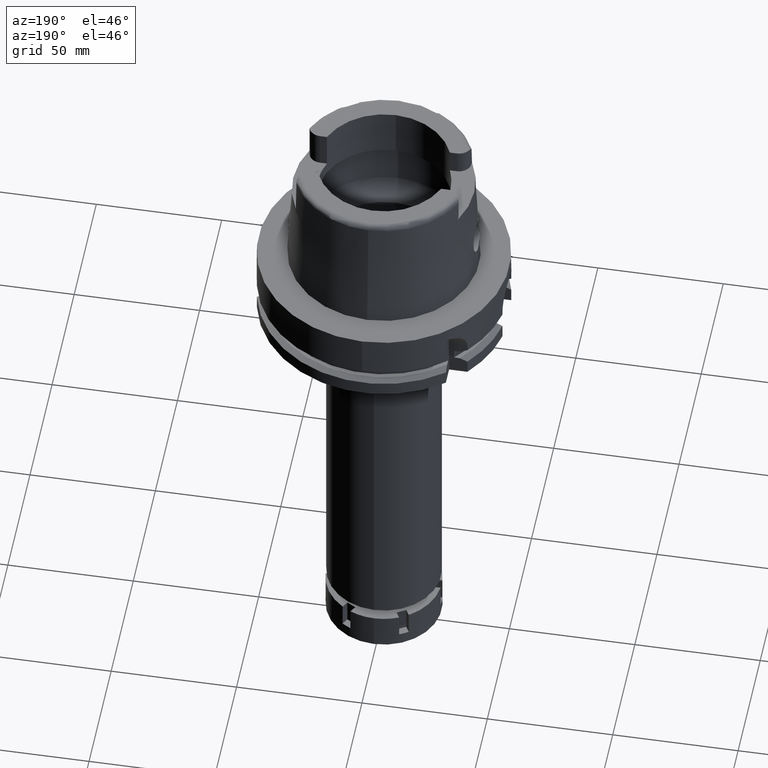
[diagram: clean part render]
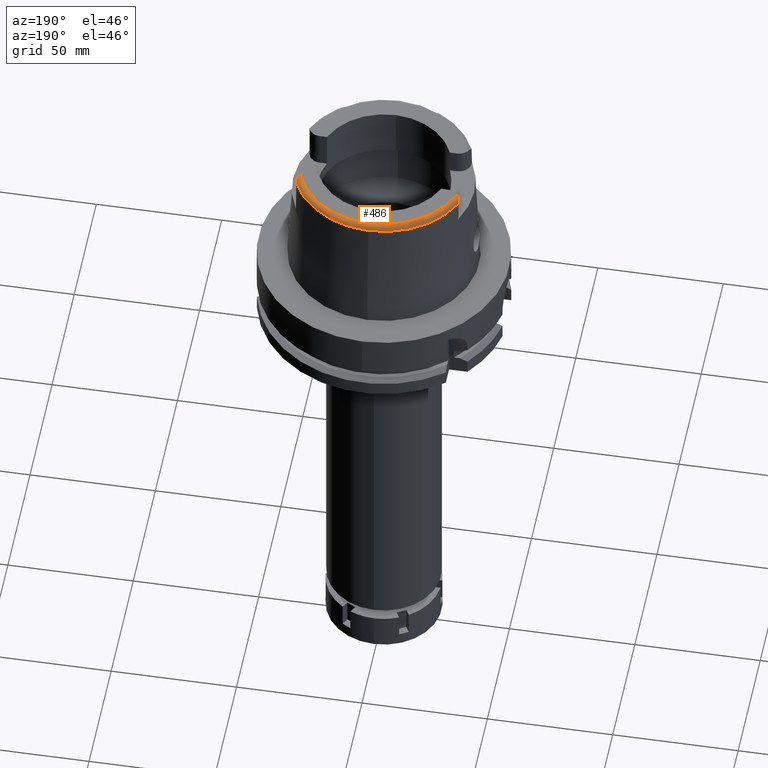
[diagram: same view with one face highlighted and labeled with its STEP entity id]
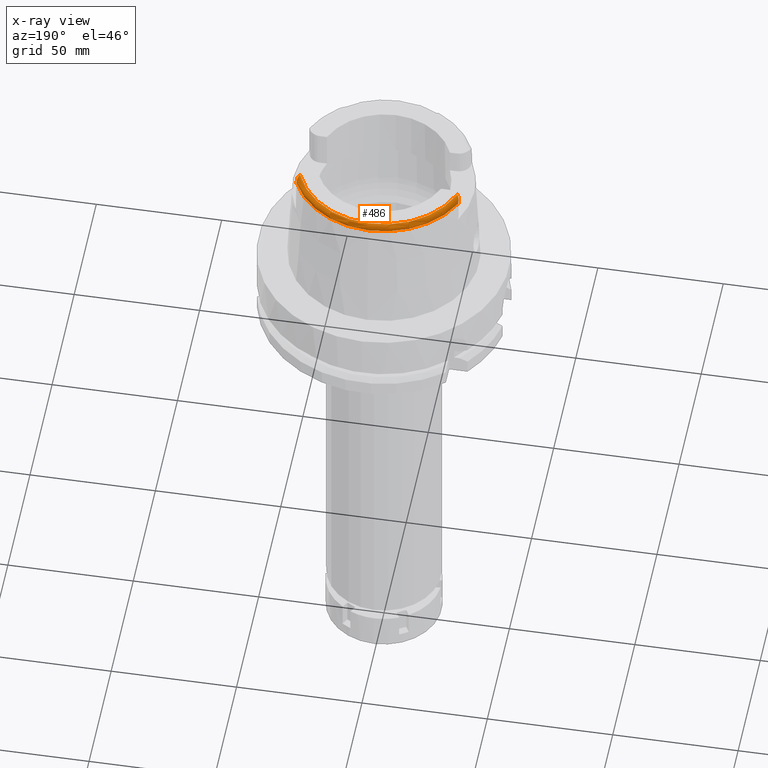
[diagram: x-ray of the same camera — body ghosted, the highlighted face saturated]
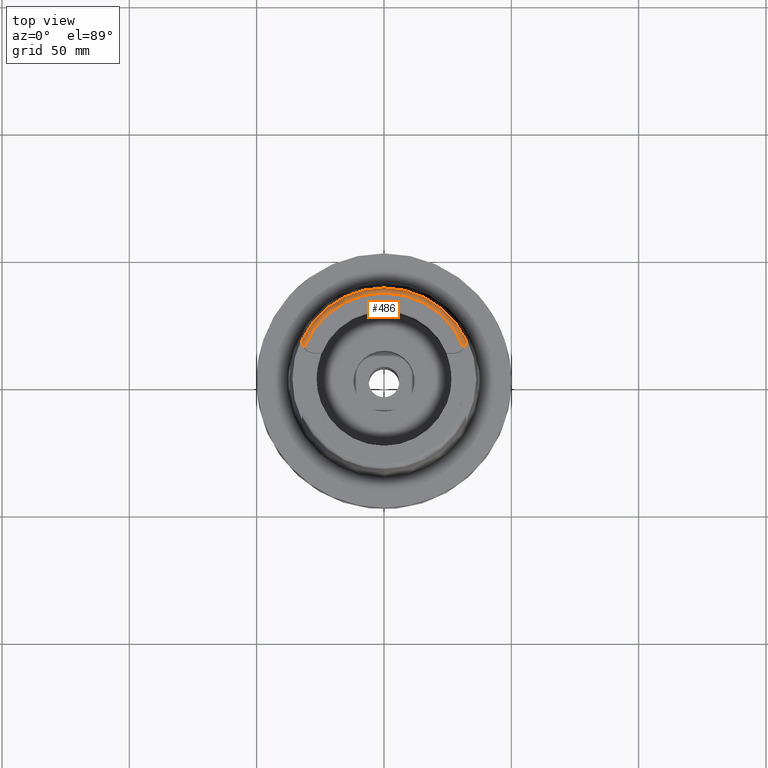
[diagram: same view with one face highlighted and labeled with its STEP entity id]
A machine part, auxiliary view. The second image highlights one B-rep face of the part: STEP entity #486.
The next image is the same camera in x-ray: the body ghosted, the highlighted face saturated — about 0% of this face is hidden behind the body in this view.
A second angle (top view) of the same face is appended — the face is thin or edge-on in the first view.
In plain terms, the highlighted toroidal blend (fillet) surface has major radius 33.5974 mm and minor (blend) radius 2 mm.
Its self-contained STEP definition (entity closure, byte-faithful):
#14 = CARTESIAN_POINT ( 'NONE',  ( -32.11143353666965794, 13.73531450486829186, 49.49527038910193966 ) ) ;
#27 = CARTESIAN_POINT ( 'NONE',  ( 32.25000000000000000, 14.89000000000000057, 48.54599893821999501 ) ) ;
#44 = CARTESIAN_POINT ( 'NONE',  ( -32.11399237168102871, 13.74588340426287658, 49.48945661700593490 ) ) ;
#80 = CARTESIAN_POINT ( 'NONE',  ( 32.24997259507919978, 15.06456600678449931, 48.09965213612569812 ) ) ;
#450 = CARTESIAN_POINT ( 'NONE',  ( 31.35385269249000473, 12.07161079256999869, 50.00000000000000000 ) ) ;
#469 = CARTESIAN_POINT ( 'NONE',  ( -32.10689368970827218, 13.71682961692467551, 49.50535914030082552 ) ) ;
#470 = CARTESIAN_POINT ( 'NONE',  ( 32.11966033389232678, 13.76964652553862933, 49.47628112281682888 ) ) ;
#482 = CARTESIAN_POINT ( 'NONE',  ( 32.25000000000000000, 14.98827138412121407, 48.40083773708106918 ) ) ;
#486 = ADVANCED_FACE ( 'NONE', ( #3210 ), #4267, .T. ) ;
#528 = CARTESIAN_POINT ( 'NONE',  ( -32.21858831228625775, 14.33657157819501471, 49.10560092943405408 ) ) ;
#738 = CARTESIAN_POINT ( 'NONE',  ( 32.25000000000000711, 14.83646854726152320, 48.62507271996398117 ) ) ;
#872 = CARTESIAN_POINT ( 'NONE',  ( 32.12334174574196055, 13.78536999711456268, 49.46747715997242523 ) ) ;
#907 = CARTESIAN_POINT ( 'NONE',  ( 32.20652884867281784, 14.22984482416229923, 49.18774032951709074 ) ) ;
#940 = CARTESIAN_POINT ( 'NONE',  ( 32.17895385025892097, 14.05830479973889702, 49.30312374554500110 ) ) ;
#964 = EDGE_CURVE ( 'NONE', #2157, #1915, #2713, .T. ) ;
#967 = CARTESIAN_POINT ( 'NONE',  ( -32.25000000000000000, 14.78314086769642977, 48.70384549893720560 ) ) ;
#996 = CARTESIAN_POINT ( 'NONE',  ( 31.84862891147094288, 12.95149724631898103, 49.84029256435041333 ) ) ;
#1050 = CARTESIAN_POINT ( 'NONE',  ( -31.93833614825160438, 13.16708728174654830, 49.76527589638524773 ) ) ;
#1081 = AXIS2_PLACEMENT_3D ( 'NONE', #1208, #1305, #2128 ) ;
#1208 = CARTESIAN_POINT ( 'NONE',  ( 0.0000000000000000000, 0.0000000000000000000, 48.09987853799000135 ) ) ;
#1229 = AXIS2_PLACEMENT_3D ( 'NONE', #4195, #4244, #3785 ) ;
#1275 = EDGE_CURVE ( 'NONE', #1915, #4661, #5752, .T. ) ;
#1298 = DIRECTION ( 'NONE',  ( 0.0000000000000000000, 0.0000000000000000000, -1.000000000000000000 ) ) ;
#1305 = DIRECTION ( 'NONE',  ( 0.0000000000000000000, 0.0000000000000000000, -1.000000000000000000 ) ) ;
#1335 = CARTESIAN_POINT ( 'NONE',  ( 31.92303419648798979, 13.13079571178187521, 49.77761748712916301 ) ) ;
#1365 = CARTESIAN_POINT ( 'NONE',  ( 31.68349909757435512, 12.58496466301601835, 49.95428925979557988 ) ) ;
#1394 = CARTESIAN_POINT ( 'NONE',  ( 32.11811770570650282, 13.76311539644024151, 49.47992085306490395 ) ) ;
#1422 = CARTESIAN_POINT ( 'NONE',  ( -32.19744613257867627, 14.17339178194578331, 49.22569704535514035 ) ) ;
#1448 = CARTESIAN_POINT ( 'NONE',  ( -32.22427153015193113, 14.38886174396983897, 49.06449411213728951 ) ) ;
#1503 = CARTESIAN_POINT ( 'NONE',  ( -31.78341300237678979, 12.80726249444920484, 49.88490494701393629 ) ) ;
#1683 = CARTESIAN_POINT ( 'NONE',  ( -32.25000000000000000, 14.98831011528688073, 48.40078052543827170 ) ) ;
#1726 = CARTESIAN_POINT ( 'NONE',  ( 32.24468522005578563, 14.65921679413604828, 48.82378024991540855 ) ) ;
#1786 = CARTESIAN_POINT ( 'NONE',  ( 32.23849560717271601, 14.55441918793651190, 48.92351766823794179 ) ) ;
#1788 = DIRECTION ( 'NONE',  ( -0.0004184165975219878483, -0.9999999124637716230, 0.0000000000000000000 ) ) ;
#1877 = CARTESIAN_POINT ( 'NONE',  ( 31.35385269249000473, 12.07161079256999869, 50.00000000000000000 ) ) ;
#1915 = VERTEX_POINT ( 'NONE', #4594 ) ;
#1946 = VERTEX_POINT ( 'NONE', #2794 ) ;
#2006 = CARTESIAN_POINT ( 'NONE',  ( 32.24997259507919978, 15.06456600678449931, 48.09965213612569812 ) ) ;
#2128 = DIRECTION ( 'NONE',  ( -0.9060276961631030801, 0.4232183996300014628, 0.0000000000000000000 ) ) ;
#2157 = VERTEX_POINT ( 'NONE', #5246 ) ;
#2227 = CARTESIAN_POINT ( 'NONE',  ( 32.24265461045400372, 14.61890429519794132, 48.86363685190973172 ) ) ;
#2231 = ORIENTED_EDGE ( 'NONE', *, *, #3805, .F. ) ;
#2320 = CIRCLE ( 'NONE', #1229, 35.59494289391000166 ) ;
#2348 = CARTESIAN_POINT ( 'NONE',  ( -32.20533771772084464, 14.22903992405121620, 49.18630987390861975 ) ) ;
#2349 = CARTESIAN_POINT ( 'NONE',  ( 31.87892960853114133, 13.02306035501853998, 49.81593533799114937 ) ) ;
#2406 = CARTESIAN_POINT ( 'NONE',  ( -31.80111656747197557, 12.84522009962455158, 49.87374297549968105 ) ) ;
#2407 = CARTESIAN_POINT ( 'NONE',  ( 32.03781657963405394, 13.45834474055986618, 49.63949778734396290 ) ) ;
#2467 = CARTESIAN_POINT ( 'NONE',  ( -32.24705834289401452, 14.63270038019954988, 48.86275999541277315 ) ) ;
#2552 = ORIENTED_EDGE ( 'NONE', *, *, #3891, .F. ) ;
#2604 = CARTESIAN_POINT ( 'NONE',  ( 32.23335168879610535, 14.48659607963931251, 48.98347841234672018 ) ) ;
#2629 = ORIENTED_EDGE ( 'NONE', *, *, #2642, .F. ) ;
#2642 = EDGE_CURVE ( 'NONE', #4342, #3640, #2320, .T. ) ;
#2663 = CARTESIAN_POINT ( 'NONE',  ( -31.43999772409694060, 12.19337861484810759, 50.00000000000000711 ) ) ;
#2687 = DIRECTION ( 'NONE',  ( -0.9332215253017949186, 0.3593015233941980191, 0.0000000000000000000 ) ) ;
#2695 = CARTESIAN_POINT ( 'NONE',  ( 32.25000000000000000, 14.89000000000000057, 48.54599893821999501 ) ) ;
#2713 = B_SPLINE_CURVE_WITH_KNOTS ( 'NONE', 3,
 ( #5018, #2663, #4562, #4741, #5263, #3419, #1503, #2406, #5294, #1050, #4771, #4305, #5733, #2943, #469, #14, #44, #5677, #4829, #1422, #2348, #5183, #528, #1448, #3838, #2467, #967, #4366 ),
 .UNSPECIFIED., .F., .F.,
 ( 4, 2, 1, 2, 2, 2, 1, 1, 1, 2, 2, 2, 2, 2, 2, 4 ),
 ( 0.0000000000000000000, 0.1249999999999874545, 0.1874999999999811817, 0.2187499999999762690, 0.2499999999999713562, 0.3749999999999540368, 0.4374999999999444333, 0.4687499999999396594, 0.4843749999999372169, 0.4921874999999371614, 0.4999999999999371059, 0.6249999999999443778, 0.6874999999999485967, 0.7187499999999510392, 0.7499999999999534817, 1.000000000000000000 ),
 .UNSPECIFIED. ) ;
#2784 = CARTESIAN_POINT ( 'NONE',  ( -32.25000000000000000, 14.89000000000000057, 48.54599893821999501 ) ) ;
#2794 = CARTESIAN_POINT ( 'NONE',  ( 32.25000000000000000, 14.89000000000000057, 48.54599893821999501 ) ) ;
#2943 = CARTESIAN_POINT ( 'NONE',  ( -32.10000019849645980, 13.68911158231177794, 49.52038123909947132 ) ) ;
#3060 = CIRCLE ( 'NONE', #1081, 35.59494289391000166 ) ;
#3210 = FACE_OUTER_BOUND ( 'NONE', #4898, .T. ) ;
#3233 = CARTESIAN_POINT ( 'NONE',  ( -32.25000000000000000, 15.04645421182688025, 48.25208726488160949 ) ) ;
#3357 = CARTESIAN_POINT ( 'NONE',  ( 32.12878629025679089, 13.80888760084574685, 49.45423064961461534 ) ) ;
#3409 = EDGE_CURVE ( 'NONE', #3640, #1946, #6059, .T. ) ;
#3419 = CARTESIAN_POINT ( 'NONE',  ( -31.74857052954579117, 12.73497564645557034, 49.90492147796804545 ) ) ;
#3483 = ORIENTED_EDGE ( 'NONE', *, *, #3409, .F. ) ;
#3601 = ORIENTED_EDGE ( 'NONE', *, *, #964, .F. ) ;
#3640 = VERTEX_POINT ( 'NONE', #2006 ) ;
#3700 = CARTESIAN_POINT ( 'NONE',  ( 32.23692334418137762, 14.53225493191285977, 48.94349392590346071 ) ) ;
#3785 = DIRECTION ( 'NONE',  ( 0.0000000000000000000, 1.000000000000000000, 0.0000000000000000000 ) ) ;
#3788 = CARTESIAN_POINT ( 'NONE',  ( 32.08043316314039117, 13.60569956654193469, 49.56702318365172744 ) ) ;
#3805 = EDGE_CURVE ( 'NONE', #4661, #4342, #3060, .T. ) ;
#3838 = CARTESIAN_POINT ( 'NONE',  ( -32.22696327469452626, 14.41577040990923742, 49.04274023167589291 ) ) ;
#3891 = EDGE_CURVE ( 'NONE', #1946, #5630, #4421, .T. ) ;
#3945 = AXIS2_PLACEMENT_3D ( 'NONE', #4525, #1298, #2687 ) ;
#4008 = ORIENTED_EDGE ( 'NONE', *, *, #4467, .T. ) ;
#4046 = CIRCLE ( 'NONE', #3945, 33.59743838135999994 ) ;
#4119 = CARTESIAN_POINT ( 'NONE',  ( -32.25000136840999687, 15.06443228961999914, 48.09991915655000128 ) ) ;
#4164 = CARTESIAN_POINT ( 'NONE',  ( 0.0000000000000000000, 0.0000000000000000000, 48.00000000000000000 ) ) ;
#4195 = CARTESIAN_POINT ( 'NONE',  ( 0.0000000000000000000, 0.0000000000000000000, 48.09987853799000135 ) ) ;
#4244 = DIRECTION ( 'NONE',  ( 0.0000000000000000000, 0.0000000000000000000, -1.000000000000000000 ) ) ;
#4248 = CARTESIAN_POINT ( 'NONE',  ( 31.96309356710479932, 13.23959744772136737, 49.73395360229812923 ) ) ;
#4267 = TOROIDAL_SURFACE ( 'NONE', #5754, 33.59743838135999994, 2.000000000000000000 ) ;
#4305 = CARTESIAN_POINT ( 'NONE',  ( -32.04763656422850460, 13.49559575614656914, 49.62009555870501742 ) ) ;
#4306 = CARTESIAN_POINT ( 'NONE',  ( 31.52602465229000472, 12.31497949545219761, 49.99999999999999289 ) ) ;
#4342 = VERTEX_POINT ( 'NONE', #5385 ) ;
#4366 = CARTESIAN_POINT ( 'NONE',  ( -32.25000000000000000, 14.89000000000000057, 48.54599893821999501 ) ) ;
#4421 = B_SPLINE_CURVE_WITH_KNOTS ( 'NONE', 3,
 ( #2695, #738, #5980, #1726, #2227, #1786, #3700, #2604, #4504, #5210, #907, #940, #5119, #4742, #4772, #3357, #872, #470, #1394, #3788, #2407, #4248, #1335, #2349, #996, #5184, #1365, #4306, #1877 ),
 .UNSPECIFIED., .F., .F.,
 ( 4, 2, 2, 2, 2, 2, 2, 1, 1, 2, 2, 2, 1, 2, 2, 4 ),
 ( 0.0000000000000000000, 0.1250000000000010825, 0.1875000000000008327, 0.2187499999999982236, 0.2499999999999956146, 0.3749999999999883427, 0.4374999999999836797, 0.4687499999999812372, 0.4843749999999799605, 0.4921874999999792943, 0.4999999999999786282, 0.6249999999999790168, 0.6874999999999787947, 0.7187499999999800160, 0.7499999999999812372, 1.000000000000000000 ),
 .UNSPECIFIED. ) ;
#4467 = EDGE_CURVE ( 'NONE', #2157, #5630, #4046, .T. ) ;
#4504 = CARTESIAN_POINT ( 'NONE',  ( 32.23145723418190300, 14.46423197022592966, 49.00254946622787600 ) ) ;
#4525 = CARTESIAN_POINT ( 'NONE',  ( 0.0000000000000000000, 0.0000000000000000000, 50.00000000000000000 ) ) ;
#4562 = CARTESIAN_POINT ( 'NONE',  ( -31.52243606182027236, 12.32175217068551909, 49.98856198231194270 ) ) ;
#4594 = CARTESIAN_POINT ( 'NONE',  ( -32.25000000000000000, 14.89000000000000057, 48.54599893821999501 ) ) ;
#4661 = VERTEX_POINT ( 'NONE', #5230 ) ;
#4741 = CARTESIAN_POINT ( 'NONE',  ( -31.63884357174071837, 12.52411113953362154, 49.95424792924778501 ) ) ;
#4742 = CARTESIAN_POINT ( 'NONE',  ( 32.15049579568344740, 13.90907961258233527, 49.39581495244996745 ) ) ;
#4771 = CARTESIAN_POINT ( 'NONE',  ( -32.01300407586251140, 13.38572475887569269, 49.67085760192525612 ) ) ;
#4772 = CARTESIAN_POINT ( 'NONE',  ( 32.14095519867767337, 13.86328481110638933, 49.42303816280774953 ) ) ;
#4829 = CARTESIAN_POINT ( 'NONE',  ( -32.16985527116581522, 14.00160629201457851, 49.34127909091930064 ) ) ;
#4898 = EDGE_LOOP ( 'NONE', ( #4008, #2552, #3483, #2629, #2231, #5887, #3601 ) ) ;
#5018 = CARTESIAN_POINT ( 'NONE',  ( -31.35385269249000473, 12.07161079256999869, 50.00000000000000000 ) ) ;
#5119 = CARTESIAN_POINT ( 'NONE',  ( 32.16846218484047881, 13.99952816066357997, 49.34071947427473503 ) ) ;
#5183 = CARTESIAN_POINT ( 'NONE',  ( -32.21548680289929223, 14.31000223316658726, 49.12593938235117008 ) ) ;
#5184 = CARTESIAN_POINT ( 'NONE',  ( 31.83366786824857897, 12.91725806008768984, 49.85144009433557244 ) ) ;
#5210 = CARTESIAN_POINT ( 'NONE',  ( 32.21972153179876130, 14.33780552037950606, 49.10735641238019866 ) ) ;
#5230 = CARTESIAN_POINT ( 'NONE',  ( -32.25000136840999687, 15.06443228961999914, 48.09991915655000128 ) ) ;
#5246 = CARTESIAN_POINT ( 'NONE',  ( -31.35385269249000473, 12.07161079256999869, 50.00000000000000000 ) ) ;
#5263 = CARTESIAN_POINT ( 'NONE',  ( -31.69523310284628437, 12.62773667096233332, 49.93280164608267313 ) ) ;
#5294 = CARTESIAN_POINT ( 'NONE',  ( -31.88134868383019693, 13.02280020860941789, 49.81874703671793725 ) ) ;
#5385 = CARTESIAN_POINT ( 'NONE',  ( 0.0000000000000000000, 35.59494289391000166, 48.09987853799000135 ) ) ;
#5630 = VERTEX_POINT ( 'NONE', #450 ) ;
#5677 = CARTESIAN_POINT ( 'NONE',  ( -32.14624671783314369, 13.88061031516027377, 49.41489449626159569 ) ) ;
#5688 = CARTESIAN_POINT ( 'NONE',  ( 32.25000000000000000, 15.04645022512469588, 48.25212961154659297 ) ) ;
#5733 = CARTESIAN_POINT ( 'NONE',  ( -32.08332886194913414, 13.62450489694163203, 49.55465560696514871 ) ) ;
#5752 = B_SPLINE_CURVE_WITH_KNOTS ( 'NONE', 3,
 ( #2784, #1683, #3233, #4119 ),
 .UNSPECIFIED., .F., .F.,
 ( 4, 4 ),
 ( 0.0000000000000000000, 1.000000000000000000 ),
 .UNSPECIFIED. ) ;
#5754 = AXIS2_PLACEMENT_3D ( 'NONE', #4164, #6047, #1788 ) ;
#5887 = ORIENTED_EDGE ( 'NONE', *, *, #1275, .F. ) ;
#5980 = CARTESIAN_POINT ( 'NONE',  ( 32.24915525354217749, 14.77205279660564052, 48.70440227060582572 ) ) ;
#6047 = DIRECTION ( 'NONE',  ( 0.0000000000000000000, 0.0000000000000000000, 1.000000000000000000 ) ) ;
#6059 = B_SPLINE_CURVE_WITH_KNOTS ( 'NONE', 3,
 ( #80, #5688, #482, #27 ),
 .UNSPECIFIED., .F., .F.,
 ( 4, 4 ),
 ( 0.0000000000000000000, 1.000000000000000000 ),
 .UNSPECIFIED. ) ;